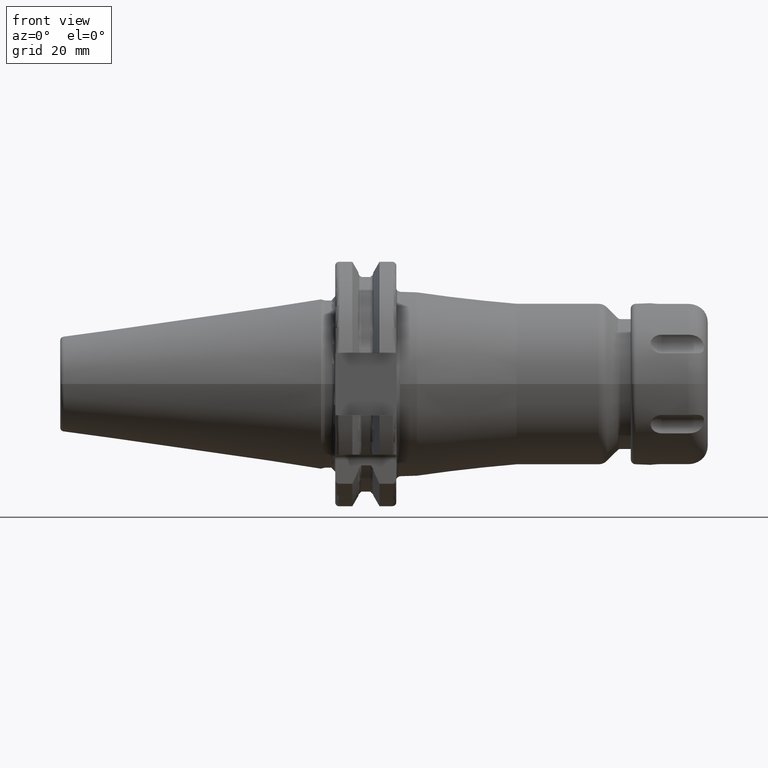
[diagram: clean part render]
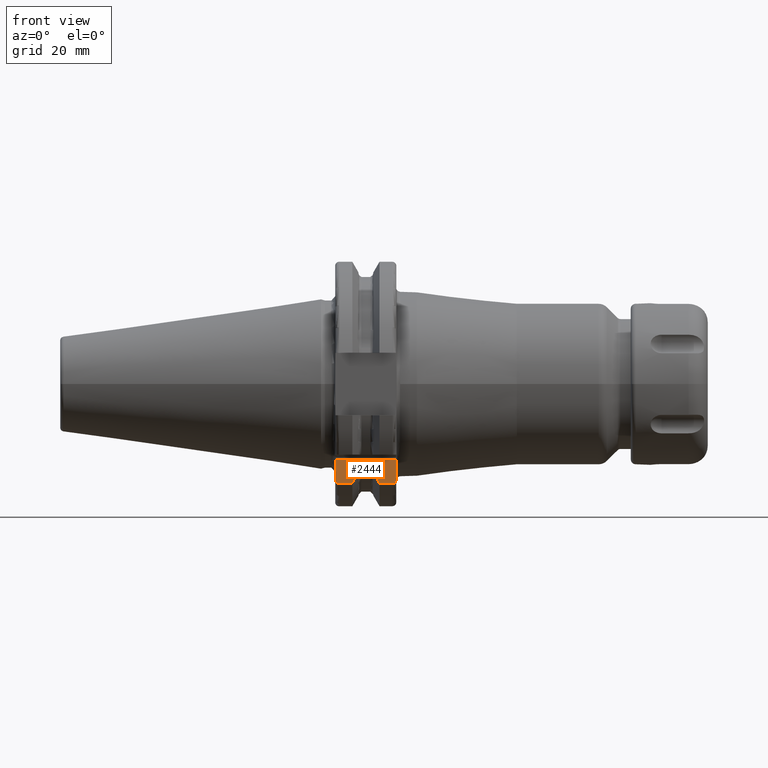
[diagram: same view with one face highlighted and labeled with its STEP entity id]
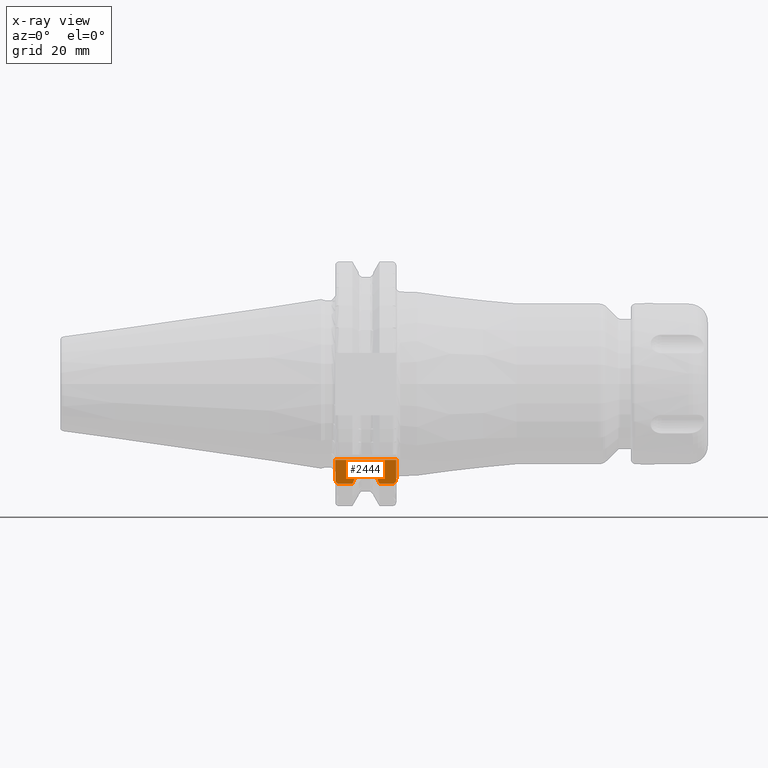
[diagram: x-ray of the same camera — body ghosted, the highlighted face saturated]
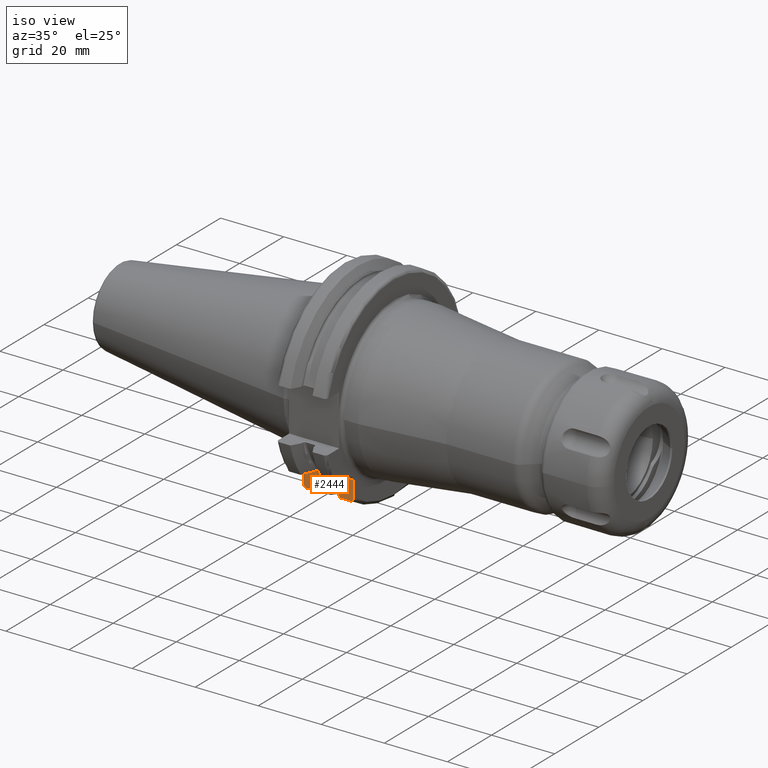
[diagram: same view with one face highlighted and labeled with its STEP entity id]
A machine part, front view. The second image highlights one B-rep face of the part: STEP entity #2444.
The next image is the same camera in x-ray: the body ghosted, the highlighted face saturated — about 0% of this face is hidden behind the body in this view.
A second angle (iso view) of the same face is appended — the face is thin or edge-on in the first view.
In plain terms, the highlighted planar face has unit normal (0, 1, 0).
Its self-contained STEP definition (entity closure, byte-faithful):
#211=DIRECTION('',(0.E0,0.E0,1.E0));
#212=VECTOR('',#211,4.990259339464E0);
#213=CARTESIAN_POINT('',(1.905E1,-1.835E1,-2.469025933946E1));
#214=LINE('',#213,#212);
#293=DIRECTION('',(0.E0,0.E0,1.E0));
#294=VECTOR('',#293,2.754068371193E-1);
#295=CARTESIAN_POINT('',(9.2625E0,-1.835E1,-2.240773613162E1));
#296=LINE('',#295,#294);
#399=DIRECTION('',(0.E0,0.E0,1.E0));
#400=VECTOR('',#399,2.754068371193E-1);
#401=CARTESIAN_POINT('',(1.30875E1,-1.835E1,-2.240773613162E1));
#402=LINE('',#401,#400);
#515=DIRECTION('',(0.E0,0.E0,1.E0));
#516=VECTOR('',#515,4.990259339464E0);
#517=CARTESIAN_POINT('',(3.2E0,-1.835E1,-2.469025933946E1));
#518=LINE('',#517,#516);
#576=DIRECTION('',(-1.E0,0.E0,0.E0));
#577=VECTOR('',#576,1.585E1);
#578=CARTESIAN_POINT('',(1.905E1,-1.835E1,-1.97E1));
#579=LINE('',#578,#577);
#591=CARTESIAN_POINT('',(1.905E1,-1.835E1,-2.469025933946E1));
#592=CARTESIAN_POINT('',(1.905E1,-1.835E1,-2.477827489148E1));
#593=CARTESIAN_POINT('',(1.903550352933E1,-1.835E1,-2.495194722121E1));
#594=CARTESIAN_POINT('',(1.896629632127E1,-1.835E1,-2.521302960336E1));
#595=CARTESIAN_POINT('',(1.884964259244E1,-1.835E1,-2.545175760021E1));
#596=CARTESIAN_POINT('',(1.869337393206E1,-1.835E1,-2.565125079223E1));
#597=CARTESIAN_POINT('',(1.850440420446E1,-1.835E1,-2.580344847600E1));
#598=CARTESIAN_POINT('',(1.828893233655E1,-1.835E1,-2.590127687802E1));
#599=CARTESIAN_POINT('',(1.813210111876E1,-1.835E1,-2.592554543785E1));
#600=CARTESIAN_POINT('',(1.805E1,-1.835E1,-2.592554543785E1));
#638=DIRECTION('',(1.E0,0.E0,0.E0));
#639=VECTOR('',#638,3.445946479578E0);
#640=CARTESIAN_POINT('',(4.2E0,-1.835E1,-2.592554543785E1));
#641=LINE('',#640,#639);
#656=DIRECTION('',(1.E0,0.E0,0.E0));
#657=VECTOR('',#656,3.345946479578E0);
#658=CARTESIAN_POINT('',(1.470405352042E1,-1.835E1,-2.592554543785E1));
#659=LINE('',#658,#657);
#707=CARTESIAN_POINT('',(4.2E0,-1.835E1,-2.592554543785E1));
#708=CARTESIAN_POINT('',(4.117978515713E0,-1.835E1,-2.592554543785E1));
#709=CARTESIAN_POINT('',(3.961246891048E0,-1.835E1,-2.590134188482E1));
#710=CARTESIAN_POINT('',(3.745539786217E0,-1.835E1,-2.580342617652E1));
#711=CARTESIAN_POINT('',(3.556578831610E0,-1.835E1,-2.565121806264E1));
#712=CARTESIAN_POINT('',(3.400124325915E0,-1.835E1,-2.545142383546E1));
#713=CARTESIAN_POINT('',(3.283526257188E0,-1.835E1,-2.521253976185E1));
#714=CARTESIAN_POINT('',(3.214446436835E0,-1.835E1,-2.495157117356E1));
#715=CARTESIAN_POINT('',(3.2E0,-1.835E1,-2.477812311755E1));
#716=CARTESIAN_POINT('',(3.2E0,-1.835E1,-2.469025933946E1));
#757=CARTESIAN_POINT('',(9.2625E0,-1.835E1,-2.240773613162E1));
#758=CARTESIAN_POINT('',(9.097869015375E0,-1.835E1,-2.277629848758E1));
#759=CARTESIAN_POINT('',(8.758691179732E0,-1.835E1,-2.352831190146E1));
#760=CARTESIAN_POINT('',(8.220420735022E0,-1.835E1,-2.469989032362E1));
#761=CARTESIAN_POINT('',(7.840855578955E0,-1.835E1,-2.551194640168E1));
#762=CARTESIAN_POINT('',(7.645946479578E0,-1.835E1,-2.592554543785E1));
#790=CARTESIAN_POINT('',(1.30875E1,-1.835E1,-2.240773613162E1));
#791=CARTESIAN_POINT('',(1.325213098463E1,-1.835E1,-2.277629848758E1));
#792=CARTESIAN_POINT('',(1.359130882027E1,-1.835E1,-2.352831190146E1));
#793=CARTESIAN_POINT('',(1.412957926498E1,-1.835E1,-2.469989032362E1));
#794=CARTESIAN_POINT('',(1.450914442104E1,-1.835E1,-2.551194640168E1));
#795=CARTESIAN_POINT('',(1.470405352042E1,-1.835E1,-2.592554543785E1));
#832=CARTESIAN_POINT('',(1.30875E1,-1.835E1,-2.213232929450E1));
#833=CARTESIAN_POINT('',(1.30875E1,-1.835E1,-2.206221408282E1));
#834=CARTESIAN_POINT('',(1.307623234956E1,-1.835E1,-2.192389012956E1));
#835=CARTESIAN_POINT('',(1.302304002386E1,-1.835E1,-2.171577032079E1));
#836=CARTESIAN_POINT('',(1.293464596960E1,-1.835E1,-2.152606845134E1));
#837=CARTESIAN_POINT('',(1.281674247215E1,-1.835E1,-2.136698869001E1));
#838=CARTESIAN_POINT('',(1.267543530336E1,-1.835E1,-2.124593918272E1));
#839=CARTESIAN_POINT('',(1.251391277471E1,-1.835E1,-2.116784088975E1));
#840=CARTESIAN_POINT('',(1.239797666454E1,-1.835E1,-2.114893614346E1));
#841=CARTESIAN_POINT('',(1.23375E1,-1.835E1,-2.114893614346E1));
#879=DIRECTION('',(1.E0,0.E0,0.E0));
#880=VECTOR('',#879,2.325E0);
#881=CARTESIAN_POINT('',(1.00125E1,-1.835E1,-2.114893614346E1));
#882=LINE('',#881,#880);
#912=CARTESIAN_POINT('',(1.00125E1,-1.835E1,-2.114893614346E1));
#913=CARTESIAN_POINT('',(9.951993698949E0,-1.835E1,-2.114893614346E1));
#914=CARTESIAN_POINT('',(9.836000286499E0,-1.835E1,-2.116785770514E1));
#915=CARTESIAN_POINT('',(9.674360365633E0,-1.835E1,-2.124605529531E1));
#916=CARTESIAN_POINT('',(9.533017193128E0,-1.835E1,-2.136726141392E1));
#917=CARTESIAN_POINT('',(9.415344880527E0,-1.835E1,-2.152613059545E1));
#918=CARTESIAN_POINT('',(9.327039810665E0,-1.835E1,-2.171558232438E1));
#919=CARTESIAN_POINT('',(9.273817984253E0,-1.835E1,-2.192356855291E1));
#920=CARTESIAN_POINT('',(9.2625E0,-1.835E1,-2.206207271485E1));
#921=CARTESIAN_POINT('',(9.2625E0,-1.835E1,-2.213232929450E1));
#1479=CARTESIAN_POINT('',(9.2625E0,-1.835E1,-2.240773613162E1));
#1480=CARTESIAN_POINT('',(9.2625E0,-1.835E1,-2.213232929450E1));
#1481=VERTEX_POINT('',#1479);
#1482=VERTEX_POINT('',#1480);
#1507=CARTESIAN_POINT('',(1.30875E1,-1.835E1,-2.240773613162E1));
#1508=CARTESIAN_POINT('',(1.30875E1,-1.835E1,-2.213232929450E1));
#1509=VERTEX_POINT('',#1507);
#1510=VERTEX_POINT('',#1508);
#1572=CARTESIAN_POINT('',(1.00125E1,-1.835E1,-2.114893614346E1));
#1573=VERTEX_POINT('',#1572);
#1574=CARTESIAN_POINT('',(1.23375E1,-1.835E1,-2.114893614346E1));
#1575=VERTEX_POINT('',#1574);
#1580=CARTESIAN_POINT('',(1.905E1,-1.835E1,-2.469025933946E1));
#1581=VERTEX_POINT('',#1580);
#1582=CARTESIAN_POINT('',(1.805E1,-1.835E1,-2.592554543785E1));
#1583=VERTEX_POINT('',#1582);
#1584=CARTESIAN_POINT('',(4.2E0,-1.835E1,-2.592554543785E1));
#1585=VERTEX_POINT('',#1584);
#1586=CARTESIAN_POINT('',(3.2E0,-1.835E1,-2.469025933946E1));
#1587=VERTEX_POINT('',#1586);
#1592=CARTESIAN_POINT('',(1.905E1,-1.835E1,-1.97E1));
#1593=VERTEX_POINT('',#1592);
#1598=CARTESIAN_POINT('',(3.2E0,-1.835E1,-1.97E1));
#1599=VERTEX_POINT('',#1598);
#1611=VERTEX_POINT('',#795);
#1612=VERTEX_POINT('',#762);
#2414=CARTESIAN_POINT('',(1.905E1,-1.835E1,-2.835E1));
#2415=DIRECTION('',(0.E0,1.E0,0.E0));
#2416=DIRECTION('',(0.E0,0.E0,1.E0));
#2417=AXIS2_PLACEMENT_3D('',#2414,#2415,#2416);
#2418=PLANE('',#2417);
#2419=ORIENTED_EDGE('',*,*,#2018,.F.);
#2421=ORIENTED_EDGE('',*,*,#2420,.T.);
#2423=ORIENTED_EDGE('',*,*,#2422,.F.);
#2425=ORIENTED_EDGE('',*,*,#2424,.F.);
#2426=ORIENTED_EDGE('',*,*,#2224,.T.);
#2428=ORIENTED_EDGE('',*,*,#2427,.T.);
#2430=ORIENTED_EDGE('',*,*,#2429,.F.);
#2432=ORIENTED_EDGE('',*,*,#2431,.T.);
#2433=ORIENTED_EDGE('',*,*,#2138,.F.);
#2435=ORIENTED_EDGE('',*,*,#2434,.T.);
#2437=ORIENTED_EDGE('',*,*,#2436,.F.);
#2439=ORIENTED_EDGE('',*,*,#2438,.T.);
#2440=ORIENTED_EDGE('',*,*,#2348,.T.);
#2441=ORIENTED_EDGE('',*,*,#2407,.F.);
#2442=EDGE_LOOP('',(#2419,#2421,#2423,#2425,#2426,#2428,#2430,#2432,#2433,#2435,
#2437,#2439,#2440,#2441));
#2443=FACE_OUTER_BOUND('',#2442,.F.);
#2444=ADVANCED_FACE('',(#2443),#2418,.F.);
#601=B_SPLINE_CURVE_WITH_KNOTS('',3,(#591,#592,#593,#594,#595,#596,#597,#598,
#599,#600),.UNSPECIFIED.,.F.,.F.,(4,1,1,1,1,1,1,4),(0.E0,1.428571428571E-1,
2.857142857143E-1,4.285714285714E-1,5.714285714286E-1,7.142857142857E-1,
8.571428571429E-1,1.E0),.UNSPECIFIED.);
#717=B_SPLINE_CURVE_WITH_KNOTS('',3,(#707,#708,#709,#710,#711,#712,#713,#714,
#715,#716),.UNSPECIFIED.,.F.,.F.,(4,1,1,1,1,1,1,4),(0.E0,1.428571428571E-1,
2.857142857143E-1,4.285714285714E-1,5.714285714286E-1,7.142857142857E-1,
8.571428571429E-1,1.E0),.UNSPECIFIED.);
#763=B_SPLINE_CURVE_WITH_KNOTS('',3,(#757,#758,#759,#760,#761,#762),
.UNSPECIFIED.,.F.,.F.,(4,1,1,4),(0.E0,3.333333333333E-1,6.666666666667E-1,1.E0),
.UNSPECIFIED.);
#796=B_SPLINE_CURVE_WITH_KNOTS('',3,(#790,#791,#792,#793,#794,#795),
.UNSPECIFIED.,.F.,.F.,(4,1,1,4),(0.E0,3.333333333333E-1,6.666666666667E-1,1.E0),
.UNSPECIFIED.);
#842=B_SPLINE_CURVE_WITH_KNOTS('',3,(#832,#833,#834,#835,#836,#837,#838,#839,
#840,#841),.UNSPECIFIED.,.F.,.F.,(4,1,1,1,1,1,1,4),(0.E0,1.428571428571E-1,
2.857142857143E-1,4.285714285714E-1,5.714285714286E-1,7.142857142857E-1,
8.571428571429E-1,1.E0),.UNSPECIFIED.);
#922=B_SPLINE_CURVE_WITH_KNOTS('',3,(#912,#913,#914,#915,#916,#917,#918,#919,
#920,#921),.UNSPECIFIED.,.F.,.F.,(4,1,1,1,1,1,1,4),(0.E0,1.428571428571E-1,
2.857142857143E-1,4.285714285714E-1,5.714285714286E-1,7.142857142857E-1,
8.571428571429E-1,1.E0),.UNSPECIFIED.);
#2018=EDGE_CURVE('',#1581,#1593,#214,.T.);
#2138=EDGE_CURVE('',#1481,#1482,#296,.T.);
#2224=EDGE_CURVE('',#1509,#1510,#402,.T.);
#2348=EDGE_CURVE('',#1587,#1599,#518,.T.);
#2407=EDGE_CURVE('',#1593,#1599,#579,.T.);
#2420=EDGE_CURVE('',#1581,#1583,#601,.T.);
#2422=EDGE_CURVE('',#1611,#1583,#659,.T.);
#2424=EDGE_CURVE('',#1509,#1611,#796,.T.);
#2427=EDGE_CURVE('',#1510,#1575,#842,.T.);
#2429=EDGE_CURVE('',#1573,#1575,#882,.T.);
#2431=EDGE_CURVE('',#1573,#1482,#922,.T.);
#2434=EDGE_CURVE('',#1481,#1612,#763,.T.);
#2436=EDGE_CURVE('',#1585,#1612,#641,.T.);
#2438=EDGE_CURVE('',#1585,#1587,#717,.T.);